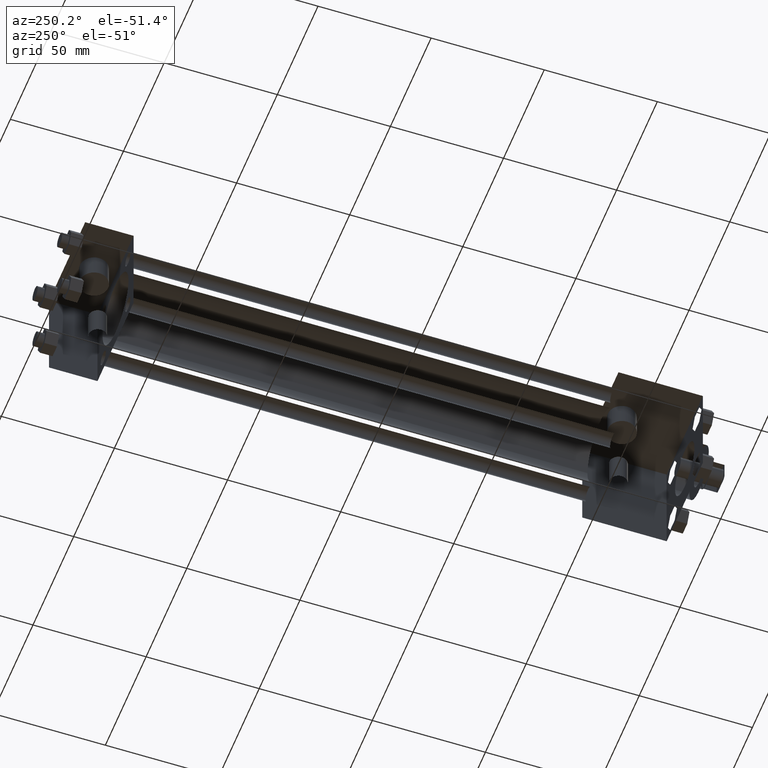
[diagram: clean part render]
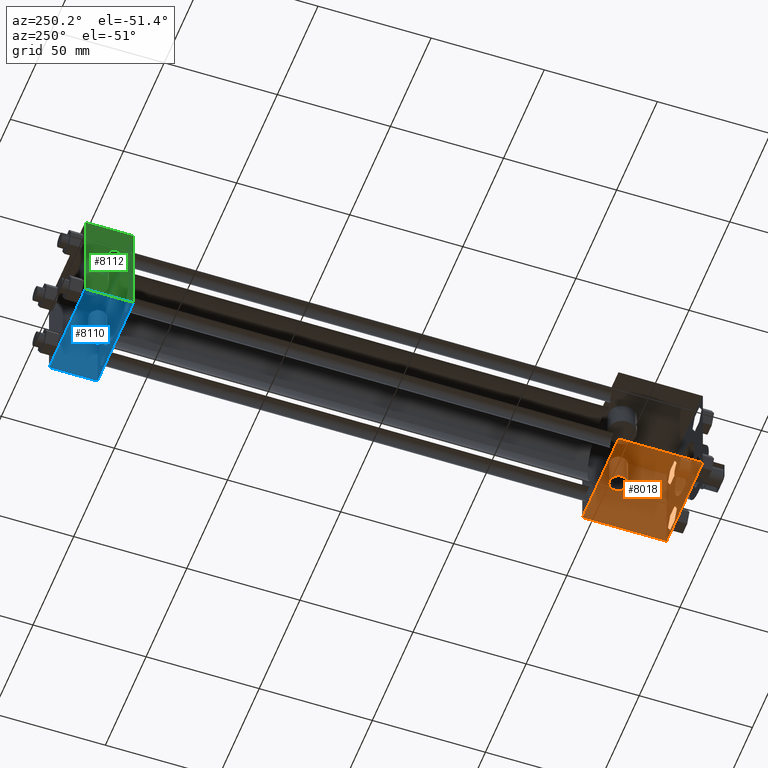
[diagram: same view with three faces highlighted in distinct colors, each labeled with its STEP entity id]
A machine part, auxiliary view with three faces highlighted in distinct colors.
Their STEP definitions:

[orange] entity #8018 — the highlighted planar face has unit normal (0, 0, -1).
#480=EDGE_CURVE('',#485,#486,#481,.T.);
#481=LINE('',#482,#483);
#482=CARTESIAN_POINT('',(-2.222500000E+001,5.318125000E+001,-2.222500000E+001));
#483=VECTOR('',#484,1.0E+000);
#484=DIRECTION('',(1.0E+000,0.0E+000,0.0E+000));
#485=VERTEX_POINT('',#487);
#486=VERTEX_POINT('',#488);
#487=CARTESIAN_POINT('',(-2.222500000E+001,5.318125000E+001,-2.222500000E+001));
#488=CARTESIAN_POINT('',(2.222500000E+001,5.318125000E+001,-2.222500000E+001));
#549=FACE_OUTER_BOUND('',#551,.T.);
#550=FACE_BOUND('',#552,.T.);
#551=EDGE_LOOP('',(#553,#554,#555,#556));
#552=EDGE_LOOP('',(#576));
#553=ORIENTED_EDGE('',*,*,#557,.T.);
#554=ORIENTED_EDGE('',*,*,#564,.F.);
#555=ORIENTED_EDGE('',*,*,#571,.F.);
#556=ORIENTED_EDGE('',*,*,#480,.T.);
#557=EDGE_CURVE('',#486,#562,#558,.T.);
#558=LINE('',#559,#560);
#559=CARTESIAN_POINT('',(2.222500000E+001,5.318125000E+001,-2.222500000E+001));
#560=VECTOR('',#561,1.0E+000);
#561=DIRECTION('',(0.0E+000,-1.0E+000,0.0E+000));
#562=VERTEX_POINT('',#563);
#563=CARTESIAN_POINT('',(2.222500000E+001,1.587500000E+001,-2.222500000E+001));
#564=EDGE_CURVE('',#569,#562,#565,.T.);
#565=LINE('',#566,#567);
#566=CARTESIAN_POINT('',(-2.222500000E+001,1.587500000E+001,-2.222500000E+001));
#567=VECTOR('',#568,1.0E+000);
#568=DIRECTION('',(1.0E+000,0.0E+000,0.0E+000));
#569=VERTEX_POINT('',#570);
#570=CARTESIAN_POINT('',(-2.222500000E+001,1.587500000E+001,-2.222500000E+001));
#571=EDGE_CURVE('',#485,#569,#572,.T.);
#572=LINE('',#573,#574);
#573=CARTESIAN_POINT('',(-2.222500000E+001,5.318125000E+001,-2.222500000E+001));
#574=VECTOR('',#575,1.0E+000);
#575=DIRECTION('',(0.0E+000,-1.0E+000,0.0E+000));
#576=ORIENTED_EDGE('',*,*,#577,.T.);
#577=EDGE_CURVE('',#583,#583,#578,.T.);
#578=CIRCLE('',#579,3.968750000E+000);
#579=AXIS2_PLACEMENT_3D('',#580,#581,#582);
#580=CARTESIAN_POINT('',(0.000000000E+000,4.524375000E+001,-2.222500000E+001));
#581=DIRECTION('',(0.0E+000,0.0E+000,1.0E+000));
#582=DIRECTION('',(1.0E+000,0.0E+000,0.0E+000));
#583=VERTEX_POINT('',#584);
#584=CARTESIAN_POINT('',(3.968750000E+000,4.524375000E+001,-2.222500000E+001));
#585=PLANE('',#586);
#586=AXIS2_PLACEMENT_3D('',#587,#588,#589);
#587=CARTESIAN_POINT('',(-2.222500000E+001,5.318125000E+001,-2.222500000E+001));
#588=DIRECTION('',(0.0E+000,0.0E+000,-1.0E+000));
#589=DIRECTION('',(-1.0E+000,0.0E+000,0.0E+000));
#8018=ADVANCED_FACE('',(#549,#550),#585,.T.);

[blue] entity #8110 — the highlighted planar face has unit normal (0, 0, -1).
#4434=EDGE_CURVE('',#4439,#4440,#4435,.T.);
#4435=LINE('',#4436,#4437);
#4436=CARTESIAN_POINT('',(-2.222500000E+001,2.889250000E+002,-2.222500000E+001));
#4437=VECTOR('',#4438,1.0E+000);
#4438=DIRECTION('',(1.0E+000,0.0E+000,0.0E+000));
#4439=VERTEX_POINT('',#4441);
#4440=VERTEX_POINT('',#4442);
#4441=CARTESIAN_POINT('',(-2.222500000E+001,2.889250000E+002,-2.222500000E+001));
#4442=CARTESIAN_POINT('',(2.222500000E+001,2.889250000E+002,-2.222500000E+001));
#4607=EDGE_CURVE('',#4612,#4613,#4608,.T.);
#4608=LINE('',#4609,#4610);
#4609=CARTESIAN_POINT('',(-2.222500000E+001,2.674937500E+002,-2.222500000E+001));
#4610=VECTOR('',#4611,1.0E+000);
#4611=DIRECTION('',(1.0E+000,0.0E+000,0.0E+000));
#4612=VERTEX_POINT('',#4614);
#4613=VERTEX_POINT('',#4615);
#4614=CARTESIAN_POINT('',(-2.222500000E+001,2.674937500E+002,-2.222500000E+001));
#4615=CARTESIAN_POINT('',(2.222500000E+001,2.674937500E+002,-2.222500000E+001));
#4649=FACE_OUTER_BOUND('',#4651,.T.);
#4650=FACE_BOUND('',#4652,.T.);
#4651=EDGE_LOOP('',(#4653,#4654,#4655,#4656));
#4652=EDGE_LOOP('',(#4667));
#4653=ORIENTED_EDGE('',*,*,#4607,.F.);
#4654=ORIENTED_EDGE('',*,*,#4657,.F.);
#4655=ORIENTED_EDGE('',*,*,#4434,.T.);
#4656=ORIENTED_EDGE('',*,*,#4662,.T.);
#4657=EDGE_CURVE('',#4439,#4612,#4658,.T.);
#4658=LINE('',#4659,#4660);
#4659=CARTESIAN_POINT('',(-2.222500000E+001,2.889250000E+002,-2.222500000E+001));
#4660=VECTOR('',#4661,1.0E+000);
#4661=DIRECTION('',(0.0E+000,-1.0E+000,0.0E+000));
#4662=EDGE_CURVE('',#4440,#4613,#4663,.T.);
#4663=LINE('',#4664,#4665);
#4664=CARTESIAN_POINT('',(2.222500000E+001,2.889250000E+002,-2.222500000E+001));
#4665=VECTOR('',#4666,1.0E+000);
#4666=DIRECTION('',(0.0E+000,-1.0E+000,0.0E+000));
#4667=ORIENTED_EDGE('',*,*,#4668,.T.);
#4668=EDGE_CURVE('',#4674,#4674,#4669,.T.);
#4669=CIRCLE('',#4670,3.968750000E+000);
#4670=AXIS2_PLACEMENT_3D('',#4671,#4672,#4673);
#4671=CARTESIAN_POINT('',(0.000000000E+000,2.754312500E+002,-2.222500000E+001));
#4672=DIRECTION('',(0.0E+000,0.0E+000,1.0E+000));
#4673=DIRECTION('',(1.0E+000,0.0E+000,0.0E+000));
#4674=VERTEX_POINT('',#4675);
#4675=CARTESIAN_POINT('',(3.968750000E+000,2.754312500E+002,-2.222500000E+001));
#4676=PLANE('',#4677);
#4677=AXIS2_PLACEMENT_3D('',#4678,#4679,#4680);
#4678=CARTESIAN_POINT('',(-2.222500000E+001,2.889250000E+002,-2.222500000E+001));
#4679=DIRECTION('',(0.0E+000,0.0E+000,-1.0E+000));
#4680=DIRECTION('',(-1.0E+000,0.0E+000,0.0E+000));
#8110=ADVANCED_FACE('',(#4649,#4650),#4676,.T.);

[green] entity #8112 — the highlighted planar face has unit normal (-1, 0, 0).
#4439=VERTEX_POINT('',#4441);
#4441=CARTESIAN_POINT('',(-2.222500000E+001,2.889250000E+002,-2.222500000E+001));
#4443=EDGE_CURVE('',#4448,#4439,#4444,.T.);
#4444=LINE('',#4445,#4446);
#4445=CARTESIAN_POINT('',(-2.222500000E+001,2.889250000E+002,2.222500000E+001));
#4446=VECTOR('',#4447,1.0E+000);
#4447=DIRECTION('',(0.0E+000,0.0E+000,-1.0E+000));
#4448=VERTEX_POINT('',#4449);
#4449=CARTESIAN_POINT('',(-2.222500000E+001,2.889250000E+002,2.222500000E+001));
#4612=VERTEX_POINT('',#4614);
#4614=CARTESIAN_POINT('',(-2.222500000E+001,2.674937500E+002,-2.222500000E+001));
#4628=VERTEX_POINT('',#4629);
#4629=CARTESIAN_POINT('',(-2.222500000E+001,2.674937500E+002,2.222500000E+001));
#4630=EDGE_CURVE('',#4628,#4612,#4631,.T.);
#4631=LINE('',#4632,#4633);
#4632=CARTESIAN_POINT('',(-2.222500000E+001,2.674937500E+002,2.222500000E+001));
#4633=VECTOR('',#4634,1.0E+000);
#4634=DIRECTION('',(0.0E+000,0.0E+000,-1.0E+000));
#4657=EDGE_CURVE('',#4439,#4612,#4658,.T.);
#4658=LINE('',#4659,#4660);
#4659=CARTESIAN_POINT('',(-2.222500000E+001,2.889250000E+002,-2.222500000E+001));
#4660=VECTOR('',#4661,1.0E+000);
#4661=DIRECTION('',(0.0E+000,-1.0E+000,0.0E+000));
#4694=EDGE_CURVE('',#4448,#4628,#4695,.T.);
#4695=LINE('',#4696,#4697);
#4696=CARTESIAN_POINT('',(-2.222500000E+001,2.889250000E+002,2.222500000E+001));
#4697=VECTOR('',#4698,1.0E+000);
#4698=DIRECTION('',(0.0E+000,-1.0E+000,0.0E+000));
#4713=FACE_OUTER_BOUND('',#4715,.T.);
#4714=FACE_BOUND('',#4716,.T.);
#4715=EDGE_LOOP('',(#4717,#4718,#4719,#4720));
#4716=EDGE_LOOP('',(#4721));
#4717=ORIENTED_EDGE('',*,*,#4630,.F.);
#4718=ORIENTED_EDGE('',*,*,#4694,.F.);
#4719=ORIENTED_EDGE('',*,*,#4443,.T.);
#4720=ORIENTED_EDGE('',*,*,#4657,.T.);
#4721=ORIENTED_EDGE('',*,*,#4722,.T.);
#4722=EDGE_CURVE('',#4728,#4728,#4723,.T.);
#4723=CIRCLE('',#4724,2.778125000E+000);
#4724=AXIS2_PLACEMENT_3D('',#4725,#4726,#4727);
#4725=CARTESIAN_POINT('',(-2.222500000E+001,2.754312500E+002,6.350000000E+000));
#4726=DIRECTION('',(1.0E+000,0.0E+000,0.0E+000));
#4727=DIRECTION('',(0.0E+000,-1.0E+000,0.0E+000));
#4728=VERTEX_POINT('',#4729);
#4729=CARTESIAN_POINT('',(-2.222500000E+001,2.726531250E+002,6.350000000E+000));
#4730=PLANE('',#4731);
#4731=AXIS2_PLACEMENT_3D('',#4732,#4733,#4734);
#4732=CARTESIAN_POINT('',(-2.222500000E+001,2.889250000E+002,2.222500000E+001));
#4733=DIRECTION('',(-1.0E+000,0.0E+000,0.0E+000));
#4734=DIRECTION('',(0.0E+000,0.0E+000,1.0E+000));
#8112=ADVANCED_FACE('',(#4713,#4714),#4730,.T.);